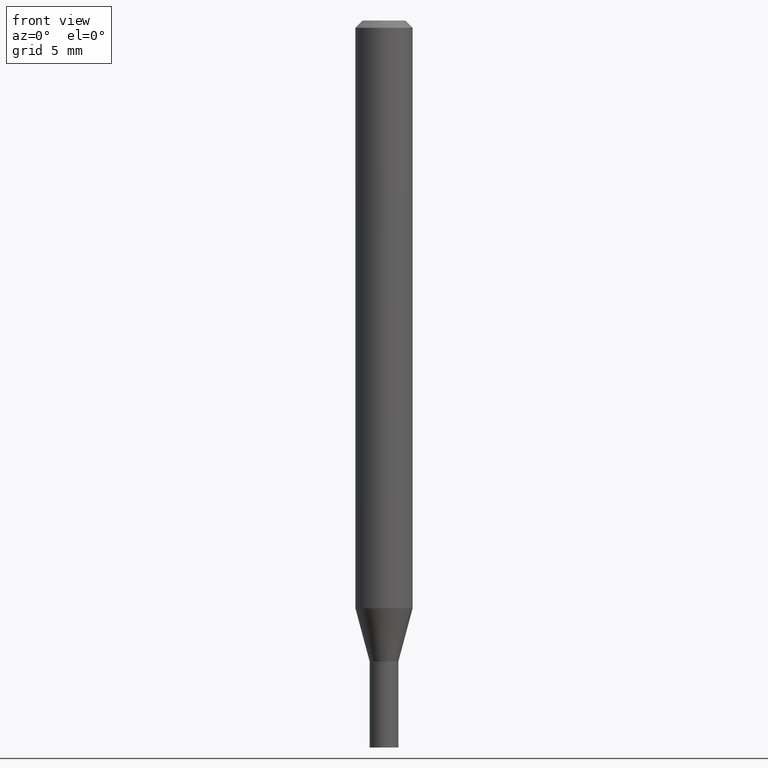
[diagram: clean part render]
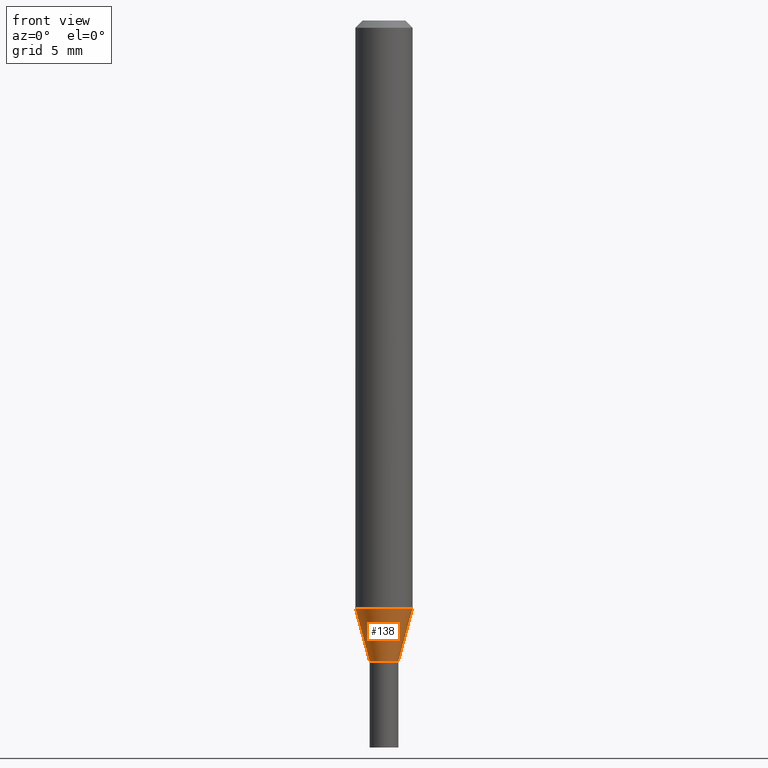
[diagram: same view with one face highlighted and labeled with its STEP entity id]
A machine part, front view. The second image highlights one B-rep face of the part: STEP entity #138.
In plain terms, the highlighted conical surface has half-angle 15 deg.
Its self-contained STEP definition (entity closure, byte-faithful):
#20 = EDGE_LOOP ( 'NONE', ( #88, #30, #134, #319 ) ) ;
#30 = ORIENTED_EDGE ( 'NONE', *, *, #221, .T. ) ;
#34 = EDGE_CURVE ( 'NONE', #392, #174, #58, .T. ) ;
#58 = LINE ( 'NONE', #98, #380 ) ;
#62 = CARTESIAN_POINT ( 'NONE',  ( -0.02954999999999992355, -4.111562893263929715E-15, -1.322799999999999976 ) ) ;
#68 = DIRECTION ( 'NONE',  ( -2.445468806185136597E-29, 3.491481338843145583E-15, 1.000000000000000000 ) ) ;
#76 = VECTOR ( 'NONE', #302, 39.37007874015748143 ) ;
#88 = ORIENTED_EDGE ( 'NONE', *, *, #34, .F. ) ;
#98 = CARTESIAN_POINT ( 'NONE',  ( -0.02954999999999992355, -4.408566136604602711E-15, -1.322799999999999976 ) ) ;
#134 = ORIENTED_EDGE ( 'NONE', *, *, #323, .T. ) ;
#138 = ADVANCED_FACE ( 'NONE', ( #182 ), #402, .T. ) ;
#140 = AXIS2_PLACEMENT_3D ( 'NONE', #438, #232, #441 ) ;
#174 = VERTEX_POINT ( 'NONE', #339 ) ;
#182 = FACE_OUTER_BOUND ( 'NONE', #20, .T. ) ;
#206 = DIRECTION ( 'NONE',  ( -0.2588190451025215721, 5.211531920934551831E-15, 0.9659258262890679791 ) ) ;
#220 = DIRECTION ( 'NONE',  ( 1.000000000000000000, -6.982962677686280121E-15, 0.000000000000000000 ) ) ;
#221 = EDGE_CURVE ( 'NONE', #392, #446, #335, .T. ) ;
#232 = DIRECTION ( 'NONE',  ( -2.445468806185136597E-29, 3.491481338843145583E-15, 1.000000000000000000 ) ) ;
#234 = CARTESIAN_POINT ( 'NONE',  ( 0.02954999999999992355, -4.824878062147340890E-15, -1.322799999999999976 ) ) ;
#237 = AXIS2_PLACEMENT_3D ( 'NONE', #348, #271, #241 ) ;
#241 = DIRECTION ( 'NONE',  ( 1.000000000000000000, -6.982962677686273021E-15, 0.000000000000000000 ) ) ;
#261 = EDGE_CURVE ( 'NONE', #174, #358, #436, .T. ) ;
#271 = DIRECTION ( 'NONE',  ( -2.445468806185136597E-29, 3.491481338843145583E-15, 1.000000000000000000 ) ) ;
#302 = DIRECTION ( 'NONE',  ( 0.2588190451025215721, 1.565188264969619995E-15, 0.9659258262890679791 ) ) ;
#305 = LINE ( 'NONE', #234, #76 ) ;
#308 = AXIS2_PLACEMENT_3D ( 'NONE', #401, #68, #220 ) ;
#310 = CARTESIAN_POINT ( 'NONE',  ( 0.05904999999999999832, -4.646479081506971132E-15, -1.212704501176718130 ) ) ;
#317 = CARTESIAN_POINT ( 'NONE',  ( 0.02954999999999992355, -4.824878062147340890E-15, -1.322799999999999976 ) ) ;
#319 = ORIENTED_EDGE ( 'NONE', *, *, #261, .F. ) ;
#323 = EDGE_CURVE ( 'NONE', #446, #358, #305, .T. ) ;
#335 = CIRCLE ( 'NONE', #308, 0.02954999999999992355 ) ;
#339 = CARTESIAN_POINT ( 'NONE',  ( -0.05904999999999999832, -3.814559649923256719E-15, -1.212704501176718130 ) ) ;
#348 = CARTESIAN_POINT ( 'NONE',  ( 2.965631028747970028E-29, -4.234135135389597001E-15, -1.212704501176718130 ) ) ;
#358 = VERTEX_POINT ( 'NONE', #310 ) ;
#380 = VECTOR ( 'NONE', #206, 39.37007874015748143 ) ;
#392 = VERTEX_POINT ( 'NONE', #62 ) ;
#401 = CARTESIAN_POINT ( 'NONE',  ( 3.234866136821698001E-29, -4.618531515021712068E-15, -1.322799999999999976 ) ) ;
#402 = CONICAL_SURFACE ( 'NONE', #140, 0.02954999999999992355, 0.2617993877991502960 ) ;
#436 = CIRCLE ( 'NONE', #237, 0.05904999999999999832 ) ;
#438 = CARTESIAN_POINT ( 'NONE',  ( 3.234866136821698001E-29, -4.618531515021712068E-15, -1.322799999999999976 ) ) ;
#441 = DIRECTION ( 'NONE',  ( 1.000000000000000000, -6.982962677686280121E-15, 0.000000000000000000 ) ) ;
#446 = VERTEX_POINT ( 'NONE', #317 ) ;